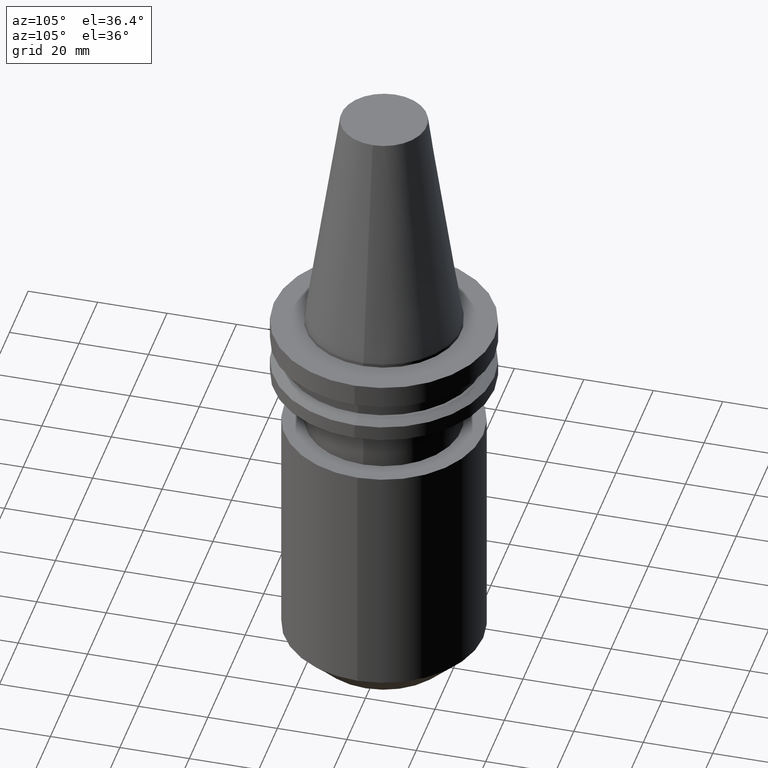
[diagram: clean part render]
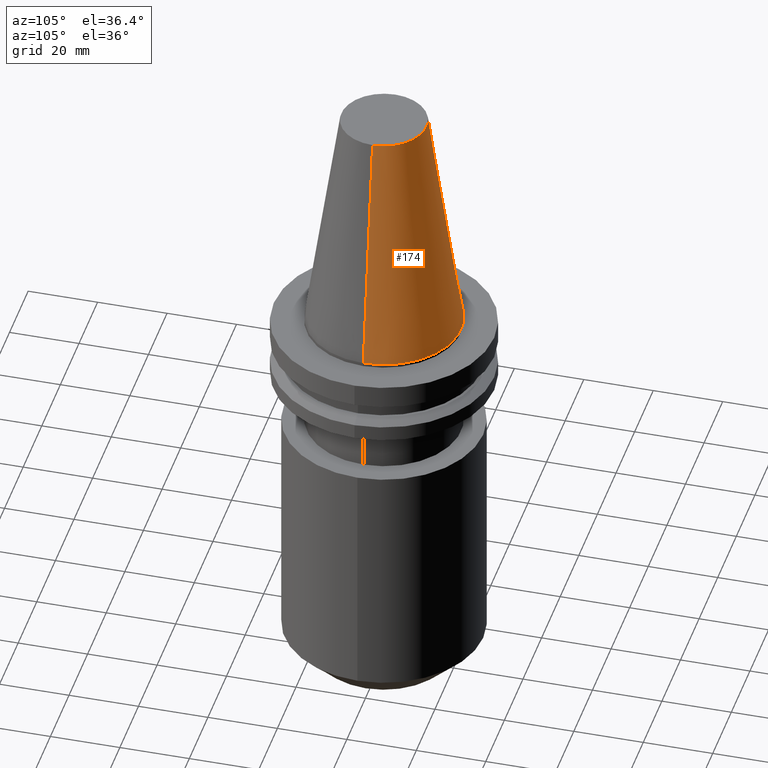
[diagram: same view with one face highlighted and labeled with its STEP entity id]
A machine part, auxiliary view. The second image highlights one B-rep face of the part: STEP entity #174.
In plain terms, the highlighted conical surface has half-angle 8.297 deg.
Its self-contained STEP definition (entity closure, byte-faithful):
#3 = VECTOR ( 'NONE', #502, 999.9999999999998863 ) ;
#39 = EDGE_LOOP ( 'NONE', ( #187, #726, #645, #543 ) ) ;
#46 = FACE_OUTER_BOUND ( 'NONE', #39, .T. ) ;
#48 = LINE ( 'NONE', #97, #3 ) ;
#83 = CARTESIAN_POINT ( 'NONE',  ( -12.27178102086201150, 0.000000000000000000, 68.25000000000000000 ) ) ;
#97 = CARTESIAN_POINT ( 'NONE',  ( 22.22500000000000142, 2.721777511104992849E-15, 0.000000000000000000 ) ) ;
#99 = AXIS2_PLACEMENT_3D ( 'NONE', #779, #644, #514 ) ;
#145 = CARTESIAN_POINT ( 'NONE',  ( -22.22500000000000142, 0.000000000000000000, 0.000000000000000000 ) ) ;
#168 = CONICAL_SURFACE ( 'NONE', #99, 22.22500000000000142, 0.1448138465474119174 ) ;
#174 = ADVANCED_FACE ( 'NONE', ( #46 ), #168, .T. ) ;
#187 = ORIENTED_EDGE ( 'NONE', *, *, #367, .F. ) ;
#219 = LINE ( 'NONE', #145, #748 ) ;
#265 = VERTEX_POINT ( 'NONE', #425 ) ;
#323 = CARTESIAN_POINT ( 'NONE',  ( 0.000000000000000000, 0.000000000000000000, 0.000000000000000000 ) ) ;
#329 = AXIS2_PLACEMENT_3D ( 'NONE', #323, #641, #511 ) ;
#331 = VERTEX_POINT ( 'NONE', #83 ) ;
#362 = EDGE_CURVE ( 'NONE', #331, #265, #219, .T. ) ;
#367 = EDGE_CURVE ( 'NONE', #503, #331, #506, .T. ) ;
#402 = CIRCLE ( 'NONE', #329, 22.22500000000000142 ) ;
#409 = DIRECTION ( 'NONE',  ( -0.1443082272672999711, 0.000000000000000000, -0.9895327864921755756 ) ) ;
#421 = CARTESIAN_POINT ( 'NONE',  ( 0.000000000000000000, 0.000000000000000000, 68.25000000000000000 ) ) ;
#425 = CARTESIAN_POINT ( 'NONE',  ( -22.22500000000000142, 0.000000000000000000, 0.000000000000000000 ) ) ;
#439 = VERTEX_POINT ( 'NONE', #839 ) ;
#440 = EDGE_CURVE ( 'NONE', #503, #439, #48, .T. ) ;
#483 = DIRECTION ( 'NONE',  ( 1.000000000000000000, 0.000000000000000000, 0.000000000000000000 ) ) ;
#502 = DIRECTION ( 'NONE',  ( 0.1443082272672999711, 1.767266086135276757E-17, -0.9895327864921755756 ) ) ;
#503 = VERTEX_POINT ( 'NONE', #570 ) ;
#506 = CIRCLE ( 'NONE', #734, 12.27178102086201150 ) ;
#511 = DIRECTION ( 'NONE',  ( 1.000000000000000000, 0.000000000000000000, 0.000000000000000000 ) ) ;
#514 = DIRECTION ( 'NONE',  ( -1.000000000000000000, 0.000000000000000000, 0.000000000000000000 ) ) ;
#532 = EDGE_CURVE ( 'NONE', #439, #265, #402, .T. ) ;
#543 = ORIENTED_EDGE ( 'NONE', *, *, #362, .F. ) ;
#570 = CARTESIAN_POINT ( 'NONE',  ( 12.27178102086201150, 2.112318622904291439E-15, 68.25000000000000000 ) ) ;
#641 = DIRECTION ( 'NONE',  ( -0.000000000000000000, -0.000000000000000000, 1.000000000000000000 ) ) ;
#644 = DIRECTION ( 'NONE',  ( 0.000000000000000000, 0.000000000000000000, -1.000000000000000000 ) ) ;
#645 = ORIENTED_EDGE ( 'NONE', *, *, #532, .T. ) ;
#668 = DIRECTION ( 'NONE',  ( -0.000000000000000000, -0.000000000000000000, 1.000000000000000000 ) ) ;
#726 = ORIENTED_EDGE ( 'NONE', *, *, #440, .T. ) ;
#734 = AXIS2_PLACEMENT_3D ( 'NONE', #421, #668, #483 ) ;
#748 = VECTOR ( 'NONE', #409, 999.9999999999998863 ) ;
#779 = CARTESIAN_POINT ( 'NONE',  ( 0.000000000000000000, 0.000000000000000000, 0.000000000000000000 ) ) ;
#839 = CARTESIAN_POINT ( 'NONE',  ( 22.22500000000000142, 2.721777511104992849E-15, 0.000000000000000000 ) ) ;